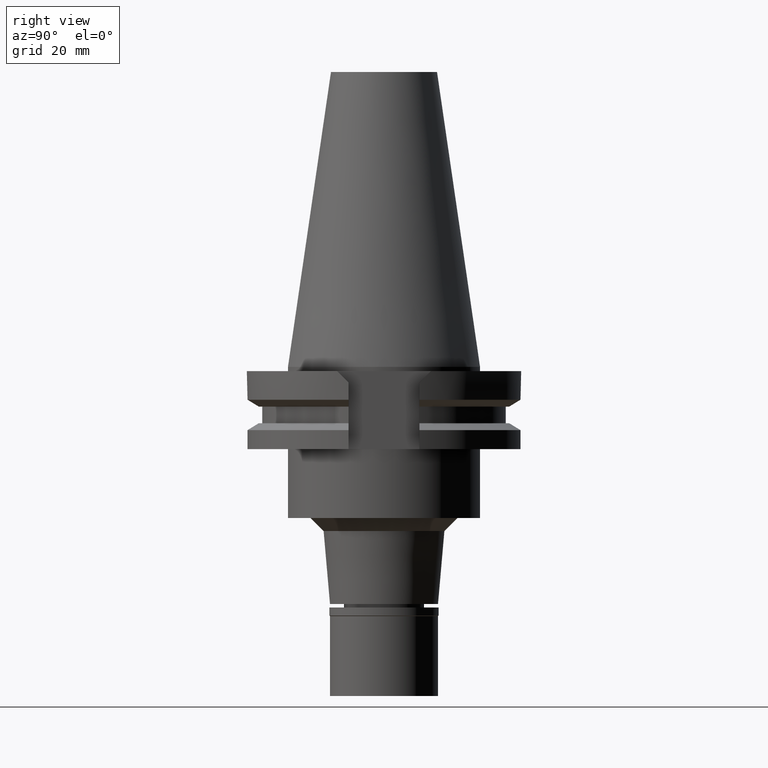
[diagram: clean part render]
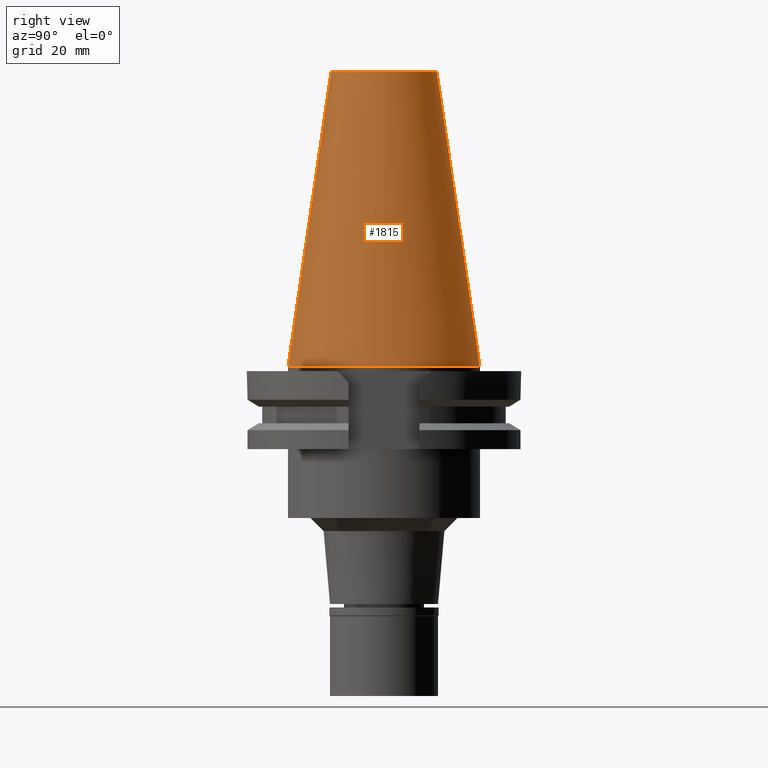
[diagram: same view with one face highlighted and labeled with its STEP entity id]
A machine part, right view. The second image highlights one B-rep face of the part: STEP entity #1815.
In plain terms, the highlighted conical surface has half-angle 8.297 deg.
Its self-contained STEP definition (entity closure, byte-faithful):
#88 = DIRECTION ( 'NONE',  ( 0.0000000000000000000, 1.000000000000000000, 0.0000000000000000000 ) ) ;
#110 = VERTEX_POINT ( 'NONE', #2532 ) ;
#122 = ORIENTED_EDGE ( 'NONE', *, *, #3334, .F. ) ;
#192 = CIRCLE ( 'NONE', #354, 12.27186888070000137 ) ;
#220 = LINE ( 'NONE', #3053, #3186 ) ;
#339 = CARTESIAN_POINT ( 'NONE',  ( 0.0000000000000000000, -22.22500000000000142, -1.989519660127999812E-13 ) ) ;
#354 = AXIS2_PLACEMENT_3D ( 'NONE', #1553, #1246, #734 ) ;
#637 = CARTESIAN_POINT ( 'NONE',  ( 0.0000000000000000000, -12.27186888070000137, 68.25000000000000000 ) ) ;
#734 = DIRECTION ( 'NONE',  ( 0.0000000000000000000, 1.000000000000000000, 0.0000000000000000000 ) ) ;
#806 = CARTESIAN_POINT ( 'NONE',  ( 0.0000000000000000000, 1.642557519355999895E-14, 34.12500000000000000 ) ) ;
#924 = ORIENTED_EDGE ( 'NONE', *, *, #3279, .F. ) ;
#935 = CARTESIAN_POINT ( 'NONE',  ( 0.0000000000000000000, -12.27186888070000137, 68.25000000000000000 ) ) ;
#1246 = DIRECTION ( 'NONE',  ( 0.0000000000000000000, 0.0000000000000000000, -1.000000000000000000 ) ) ;
#1288 = CARTESIAN_POINT ( 'NONE',  ( 0.0000000000000000000, 22.22500000000000142, -1.989519660127999812E-13 ) ) ;
#1495 = VERTEX_POINT ( 'NONE', #637 ) ;
#1553 = CARTESIAN_POINT ( 'NONE',  ( 0.0000000000000000000, 1.642557519355999895E-14, 68.25000000000000000 ) ) ;
#1585 = DIRECTION ( 'NONE',  ( 0.0000000000000000000, -1.000000000000000000, 0.0000000000000000000 ) ) ;
#1785 = CONICAL_SURFACE ( 'NONE', #2602, 17.24843444035000317, 0.1448125860318199565 ) ;
#1815 = ADVANCED_FACE ( 'NONE', ( #2371 ), #1785, .T. ) ;
#1852 = VERTEX_POINT ( 'NONE', #339 ) ;
#2049 = DIRECTION ( 'NONE',  ( 0.0000000000000000000, 0.1443069799456937474, -0.9895329683941577192 ) ) ;
#2169 = EDGE_LOOP ( 'NONE', ( #2607, #2450, #122, #924 ) ) ;
#2265 = CIRCLE ( 'NONE', #2749, 22.22500000000000142 ) ;
#2371 = FACE_OUTER_BOUND ( 'NONE', #2169, .T. ) ;
#2450 = ORIENTED_EDGE ( 'NONE', *, *, #2734, .T. ) ;
#2532 = CARTESIAN_POINT ( 'NONE',  ( 0.0000000000000000000, 12.27186888070000137, 68.25000000000000000 ) ) ;
#2602 = AXIS2_PLACEMENT_3D ( 'NONE', #806, #2932, #1585 ) ;
#2607 = ORIENTED_EDGE ( 'NONE', *, *, #3164, .T. ) ;
#2734 = EDGE_CURVE ( 'NONE', #1495, #1852, #3070, .T. ) ;
#2749 = AXIS2_PLACEMENT_3D ( 'NONE', #3172, #3158, #88 ) ;
#2791 = VERTEX_POINT ( 'NONE', #1288 ) ;
#2820 = DIRECTION ( 'NONE',  ( 0.0000000000000000000, -0.1443069799456937474, -0.9895329683941577192 ) ) ;
#2932 = DIRECTION ( 'NONE',  ( 0.0000000000000000000, 0.0000000000000000000, -1.000000000000000000 ) ) ;
#3019 = VECTOR ( 'NONE', #2820, 1000.000000000000114 ) ;
#3053 = CARTESIAN_POINT ( 'NONE',  ( 0.0000000000000000000, 12.27186888070000137, 68.25000000000000000 ) ) ;
#3070 = LINE ( 'NONE', #935, #3019 ) ;
#3158 = DIRECTION ( 'NONE',  ( 0.0000000000000000000, 0.0000000000000000000, -1.000000000000000000 ) ) ;
#3164 = EDGE_CURVE ( 'NONE', #110, #1495, #192, .T. ) ;
#3172 = CARTESIAN_POINT ( 'NONE',  ( 0.0000000000000000000, 1.642557519355999895E-14, -3.126388037344000570E-13 ) ) ;
#3186 = VECTOR ( 'NONE', #2049, 1000.000000000000114 ) ;
#3279 = EDGE_CURVE ( 'NONE', #110, #2791, #220, .T. ) ;
#3334 = EDGE_CURVE ( 'NONE', #2791, #1852, #2265, .T. ) ;